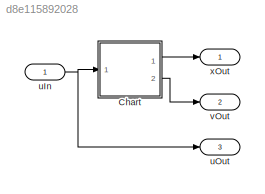
MODEL slx_d8e115892028
KIND model
CONFIG AbsTol = auto
CONFIG EnableMultiTasking = off
CONFIG FixedStep = auto
CONFIG MaxStep = timeStepMax
CONFIG MinStep = auto
CONFIG RelTol = 1e-3
CONFIG SampleTimeConstraint = Unconstrained
CONFIG SolverName = ode15s
CONFIG StartTime = 0.0
CONFIG StopTime = timeFinal
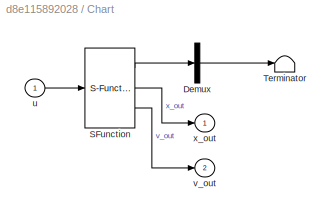
BLOCK [SubSystem] Chart
  ErrorFcn = Stateflow.Translate.translate
  PermitHierarchicalResolution = ExplicitOnly
  Ports = [1, 2]
  RequestExecContextInheritance = off
  SFBlockType = Chart
  TreatAsAtomicUnit = on
BLOCK [Demux] Chart/ Demux 
  Outputs = 1
  Ports = [1, 1]
BLOCK [S-Function] Chart/ SFunction 
  EnableBusSupport = off
  FunctionName = sf_sfun
  Parameters = a1,a2
  PortCounts = [1 3]
  Ports = [1, 3]
  SFcnIsStateOwnerBlock = off
  SFunctionDeploymentMode = off
  Tag = Stateflow S-Function 3
BLOCK [Terminator] Chart/ Terminator 
BLOCK [Inport] Chart/u
BLOCK [Outport] Chart/v_out
  Port = 2
BLOCK [Outport] Chart/x_out
BLOCK [Inport] uIn
BLOCK [Outport] uOut
  Port = 3
  SignalName = uOut
BLOCK [Outport] vOut
  Port = 2
  SignalName = vOut
BLOCK [Outport] xOut
  SignalName = xOut
LINE Chart:1 -> xOut:1
LINE Chart:2 -> vOut:1
NET uIn:1 -> Chart:1, uOut:1
note: NET lines group one-source signal fan-out (src -> all destinations, sorted); 1:1 wires keep LINE
CHART Chart states=1 transitions=5
  STATE_LABEL 'loc1\ndu: \n    x_dot = v;\n    v_dot = -9.81 + 0.5 * u;\nexit: \n    x_out = x;\n    v_out = v;\n'
CHART  states=0 transitions=0
